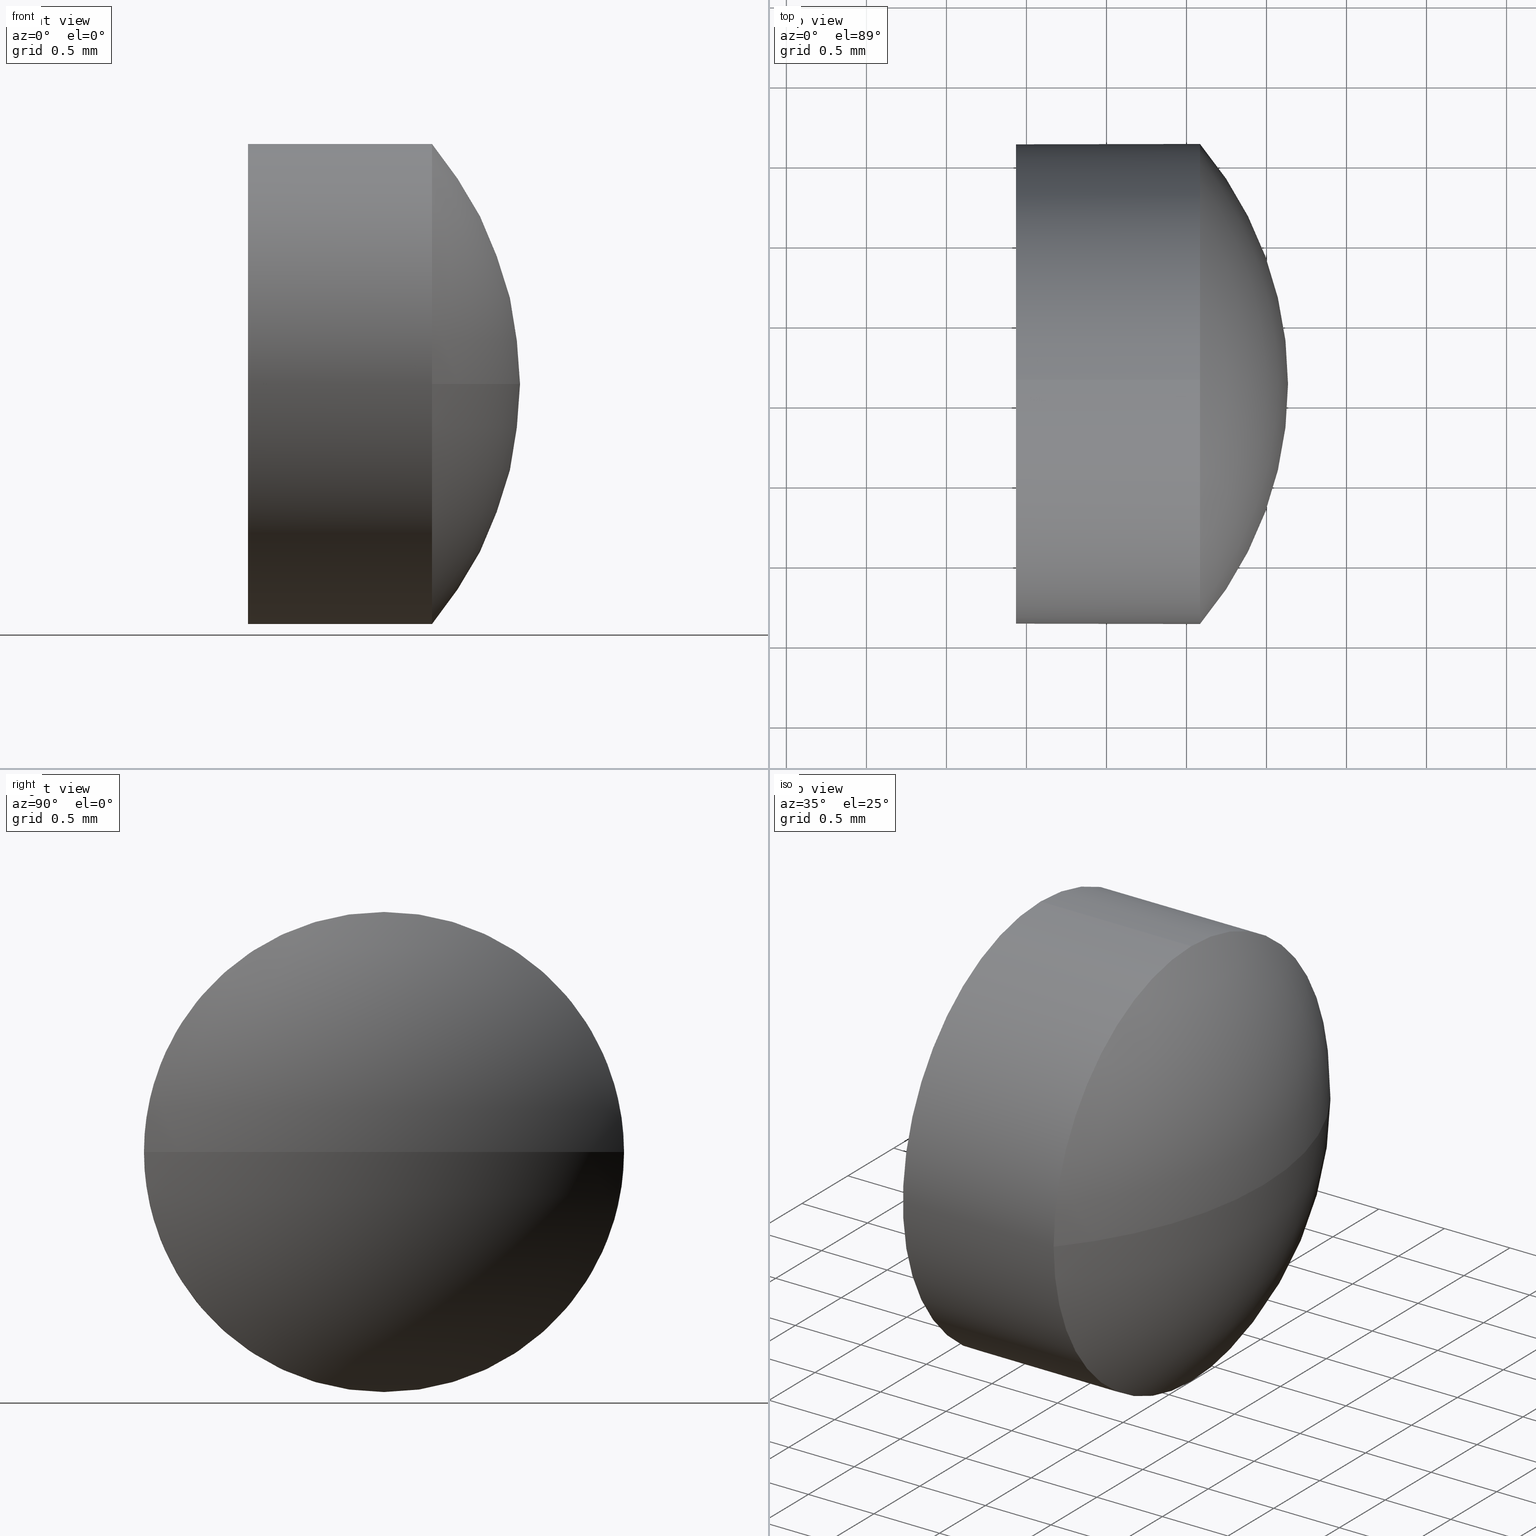
[diagram: canonical four-view strip — front | top / right | iso, engineering-drawing reading convention]
A machine part, canonical four-view strip (front | top / right | iso — engineering-drawing reading convention). The complete STEP part file that produces these views, byte-faithful:
ISO-10303-21;
HEADER;
FILE_DESCRIPTION (( 'STEP AP214' ),
    '1' );
FILE_NAME ('100086.STEP',
    '2019-05-13T02:21:16',
    ( '' ),
    ( '' ),
    'SwSTEP 2.0',
    'SolidWorks 2016',
    '' );
FILE_SCHEMA (( 'AUTOMOTIVE_DESIGN' ));
ENDSEC;

DATA;
#1 = APPLICATION_PROTOCOL_DEFINITION ( 'draft international standard', 'automotive_design', 1998, #29 ) ;
#2 = ORIENTED_EDGE ( 'NONE', *, *, #13, .T. ) ;
#3 = CARTESIAN_POINT ( 'NONE',  ( 533.6345540379046500, 125.1230185233483400, 0.0000000000000000000 ) ) ;
#4 = DIRECTION ( 'NONE',  ( 0.0000000000000000000, 1.000000000000000000, 0.0000000000000000000 ) ) ;
#5 = VERTEX_POINT ( 'NONE', #108 ) ;
#6 = MANIFOLD_SOLID_BREP ( '��ת1', #8 ) ;
#7 = AXIS2_PLACEMENT_3D ( 'NONE', #41, #154, #15 ) ;
#8 = CLOSED_SHELL ( 'NONE', ( #122, #93, #119, #109, #23 ) ) ;
#9 = SPHERICAL_SURFACE ( 'NONE', #163, 2.320431340909120600 ) ;
#10 = DIRECTION ( 'NONE',  ( 1.000000000000000000, 0.0000000000000000000, 0.0000000000000000000 ) ) ;
#11 = DIRECTION ( 'NONE',  ( -1.000000000000000000, -0.0000000000000000000, -0.0000000000000000000 ) ) ;
#12 = DIRECTION ( 'NONE',  ( 0.0000000000000000000, 1.224646799147353200E-016, -1.000000000000000000 ) ) ;
#13 = EDGE_CURVE ( 'NONE', #164, #138, #165, .T. ) ;
#14 = SURFACE_SIDE_STYLE ('',( #126 ) ) ;
#15 = DIRECTION ( 'NONE',  ( 0.0000000000000000000, 0.0000000000000000000, 1.000000000000000000 ) ) ;
#16 = DIRECTION ( 'NONE',  ( -0.0000000000000000000, 0.0000000000000000000, -1.000000000000000000 ) ) ;
#17 = CARTESIAN_POINT ( 'NONE',  ( 531.3141226969954700, 125.1230185233483400, 0.0000000000000000000 ) ) ;
#18 = COLOUR_RGB ( '',1.000000000000000000, 1.000000000000000000, 1.000000000000000000 ) ;
#19 = COLOUR_RGB ( '',1.000000000000000000, 1.000000000000000000, 1.000000000000000000 ) ;
#20 = UNCERTAINTY_MEASURE_WITH_UNIT (LENGTH_MEASURE( 1.000000000000000100E-005 ), #50, 'distance_accuracy_value', 'NONE');
#21 = ORIENTED_EDGE ( 'NONE', *, *, #167, .F. ) ;
#22 = AXIS2_PLACEMENT_3D ( 'NONE', #60, #183, #102 ) ;
#23 = ADVANCED_FACE ( 'NONE', ( #160 ), #137, .F. ) ;
#24 = CARTESIAN_POINT ( 'NONE',  ( 533.0845595379046200, 125.1230185233483600, 1.499984999999981500 ) ) ;
#25 = EDGE_LOOP ( 'NONE', ( #125, #145, #97, #162, #27 ) ) ;
#26 = FILL_AREA_STYLE_COLOUR ( '', #18 ) ;
#27 = ORIENTED_EDGE ( 'NONE', *, *, #37, .F. ) ;
#28 = DIRECTION ( 'NONE',  ( -1.000000000000000000, -0.0000000000000000000, -0.0000000000000000000 ) ) ;
#29 = APPLICATION_CONTEXT ( 'automotive_design' ) ;
#30 = DIRECTION ( 'NONE',  ( 0.0000000000000000000, 0.0000000000000000000, 1.000000000000000000 ) ) ;
#31 = CARTESIAN_POINT ( 'NONE',  ( 0.0000000000000000000, 0.0000000000000000000, 0.0000000000000000000 ) ) ;
#32 = DIRECTION ( 'NONE',  ( 0.0000000000000000000, 1.000000000000000000, 1.224646799147354700E-016 ) ) ;
#33 = FACE_OUTER_BOUND ( 'NONE', #65, .T. ) ;
#34 = ORIENTED_EDGE ( 'NONE', *, *, #58, .F. ) ;
#35 = VECTOR ( 'NONE', #175, 1000.000000000000000 ) ;
#36 = AXIS2_PLACEMENT_3D ( 'NONE', #61, #139, #104 ) ;
#37 = EDGE_CURVE ( 'NONE', #173, #5, #185, .T. ) ;
#38 = CARTESIAN_POINT ( 'NONE',  ( 533.0845595379046200, 125.1230185233483600, 0.0000000000000000000 ) ) ;
#39 = SURFACE_SIDE_STYLE ('',( #42 ) ) ;
#40 = CARTESIAN_POINT ( 'NONE',  ( 533.0845595379046200, 123.6230335233483800, -1.836951829018992800E-016 ) ) ;
#41 = CARTESIAN_POINT ( 'NONE',  ( 533.0845595379046200, 125.1230185233483600, 0.0000000000000000000 ) ) ;
#42 = SURFACE_STYLE_FILL_AREA ( #136 ) ;
#43 = DIRECTION ( 'NONE',  ( 0.0000000000000000000, 0.0000000000000000000, 1.000000000000000000 ) ) ;
#44 = CARTESIAN_POINT ( 'NONE',  ( 531.3141226969954700, 125.1230185233483400, 0.0000000000000000000 ) ) ;
#45 = ORIENTED_EDGE ( 'NONE', *, *, #128, .T. ) ;
#46 = EDGE_CURVE ( 'NONE', #5, #173, #150, .T. ) ;
#47 = CIRCLE ( 'NONE', #7, 1.499984999999981500 ) ;
#48 = AXIS2_PLACEMENT_3D ( 'NONE', #44, #63, #4 ) ;
#49 =( NAMED_UNIT ( * ) PLANE_ANGLE_UNIT ( ) SI_UNIT ( $, .RADIAN. ) );
#50 =( LENGTH_UNIT ( ) NAMED_UNIT ( * ) SI_UNIT ( .MILLI., .METRE. ) );
#51 = CARTESIAN_POINT ( 'NONE',  ( 531.3141226969954700, 125.1230185233483400, 0.0000000000000000000 ) ) ;
#52 = DIRECTION ( 'NONE',  ( 0.0000000000000000000, 1.000000000000000000, 0.0000000000000000000 ) ) ;
#53 = EDGE_LOOP ( 'NONE', ( #168, #177, #114, #178 ) ) ;
#54 = PRESENTATION_LAYER_ASSIGNMENT (  '', '', ( #56 ) ) ;
#55 = VERTEX_POINT ( 'NONE', #40 ) ;
#56 = STYLED_ITEM ( 'NONE', ( #149 ), #6 ) ;
#57 = CYLINDRICAL_SURFACE ( 'NONE', #106, 1.499984999999981500 ) ;
#58 = EDGE_CURVE ( 'NONE', #86, #5, #147, .T. ) ;
#59 = PRODUCT_DEFINITION_CONTEXT ( 'detailed design', #29, 'design' ) ;
#60 = CARTESIAN_POINT ( 'NONE',  ( 533.0845595379046200, 125.1230185233483600, 0.0000000000000000000 ) ) ;
#61 = CARTESIAN_POINT ( 'NONE',  ( 531.9345710379045600, 125.1230185233483600, 0.0000000000000000000 ) ) ;
#62 = CIRCLE ( 'NONE', #151, 1.499984999999981500 ) ;
#63 = DIRECTION ( 'NONE',  ( -0.0000000000000000000, 0.0000000000000000000, -1.000000000000000000 ) ) ;
#64 = CARTESIAN_POINT ( 'NONE',  ( 531.9345710379045600, 125.1230185233483600, -1.499984999999981500 ) ) ;
#65 = EDGE_LOOP ( 'NONE', ( #2, #92, #98, #34, #89 ) ) ;
#66 =( LENGTH_UNIT ( ) NAMED_UNIT ( * ) SI_UNIT ( .MILLI., .METRE. ) );
#67 = CYLINDRICAL_SURFACE ( 'NONE', #87, 1.499984999999981500 ) ;
#68 =( NAMED_UNIT ( * ) PLANE_ANGLE_UNIT ( ) SI_UNIT ( $, .RADIAN. ) );
#69 = AXIS2_PLACEMENT_3D ( 'NONE', #174, #28, #30 ) ;
#70 = MECHANICAL_DESIGN_GEOMETRIC_PRESENTATION_REPRESENTATION (  '', ( #148 ), #103 ) ;
#71 = FACE_OUTER_BOUND ( 'NONE', #25, .T. ) ;
#72 =( GEOMETRIC_REPRESENTATION_CONTEXT ( 3 ) GLOBAL_UNCERTAINTY_ASSIGNED_CONTEXT ( ( #155 ) ) GLOBAL_UNIT_ASSIGNED_CONTEXT ( ( #94, #68, #110 ) ) REPRESENTATION_CONTEXT ( 'NONE', 'WORKASPACE' ) );
#73 = AXIS2_PLACEMENT_3D ( 'NONE', #51, #184, #111 ) ;
#74 = CARTESIAN_POINT ( 'NONE',  ( 531.9345710379045600, 125.1230185233483600, 0.0000000000000000000 ) ) ;
#75 = DIRECTION ( 'NONE',  ( 0.0000000000000000000, 0.0000000000000000000, 1.000000000000000000 ) ) ;
#76 = PRODUCT_DEFINITION ( 'δ֪', '', #146, #59 ) ;
#77 = CARTESIAN_POINT ( 'NONE',  ( 531.7030729802447700, 125.1230185233483600, 1.499984999999981500 ) ) ;
#78 = FILL_AREA_STYLE_COLOUR ( '', #19 ) ;
#79 = PRODUCT_RELATED_PRODUCT_CATEGORY ( 'part', '', ( #176 ) ) ;
#80 =( NAMED_UNIT ( * ) PLANE_ANGLE_UNIT ( ) SI_UNIT ( $, .RADIAN. ) );
#81 = VECTOR ( 'NONE', #11, 1000.000000000000000 ) ;
#82 = EDGE_CURVE ( 'NONE', #86, #164, #62, .T. ) ;
#83 = CARTESIAN_POINT ( 'NONE',  ( 531.3141226969954700, 125.1230185233483400, 0.0000000000000000000 ) ) ;
#84 = EDGE_LOOP ( 'NONE', ( #21, #45, #118, #134 ) ) ;
#85 = ADVANCED_BREP_SHAPE_REPRESENTATION ( '100086', ( #6, #135 ), #72 ) ;
#86 = VERTEX_POINT ( 'NONE', #24 ) ;
#87 = AXIS2_PLACEMENT_3D ( 'NONE', #158, #127, #95 ) ;
#88 = CIRCLE ( 'NONE', #117, 2.320431340909118000 ) ;
#89 = ORIENTED_EDGE ( 'NONE', *, *, #82, .T. ) ;
#90 = EDGE_CURVE ( 'NONE', #138, #55, #144, .T. ) ;
#91 = DIRECTION ( 'NONE',  ( 0.0000000000000000000, 0.0000000000000000000, 1.000000000000000000 ) ) ;
#92 = ORIENTED_EDGE ( 'NONE', *, *, #99, .T. ) ;
#93 = ADVANCED_FACE ( 'NONE', ( #100 ), #9, .T. ) ;
#94 =( LENGTH_UNIT ( ) NAMED_UNIT ( * ) SI_UNIT ( .MILLI., .METRE. ) );
#95 = DIRECTION ( 'NONE',  ( 0.0000000000000000000, 0.0000000000000000000, 1.000000000000000000 ) ) ;
#96 =( NAMED_UNIT ( * ) SI_UNIT ( $, .STERADIAN. ) SOLID_ANGLE_UNIT ( ) );
#97 = ORIENTED_EDGE ( 'NONE', *, *, #116, .T. ) ;
#98 = ORIENTED_EDGE ( 'NONE', *, *, #46, .F. ) ;
#99 = EDGE_CURVE ( 'NONE', #138, #173, #132, .T. ) ;
#100 = FACE_OUTER_BOUND ( 'NONE', #53, .T. ) ;
#101 = ORIENTED_EDGE ( 'NONE', *, *, #46, .T. ) ;
#102 = DIRECTION ( 'NONE',  ( 0.0000000000000000000, 0.0000000000000000000, 1.000000000000000000 ) ) ;
#103 =( GEOMETRIC_REPRESENTATION_CONTEXT ( 3 ) GLOBAL_UNCERTAINTY_ASSIGNED_CONTEXT ( ( #129 ) ) GLOBAL_UNIT_ASSIGNED_CONTEXT ( ( #66, #80, #96 ) ) REPRESENTATION_CONTEXT ( 'NONE', 'WORKASPACE' ) );
#104 = DIRECTION ( 'NONE',  ( 0.0000000000000000000, 0.0000000000000000000, 1.000000000000000000 ) ) ;
#105 = CIRCLE ( 'NONE', #73, 2.320431340909090400 ) ;
#106 = AXIS2_PLACEMENT_3D ( 'NONE', #143, #156, #159 ) ;
#107 = SURFACE_STYLE_USAGE ( .BOTH. , #39 ) ;
#108 = CARTESIAN_POINT ( 'NONE',  ( 531.9345710379045600, 125.1230185233483600, 1.499984999999981500 ) ) ;
#109 = ADVANCED_FACE ( 'NONE', ( #71 ), #67, .T. ) ;
#110 =( NAMED_UNIT ( * ) SI_UNIT ( $, .STERADIAN. ) SOLID_ANGLE_UNIT ( ) );
#111 = DIRECTION ( 'NONE',  ( 1.000000000000000000, 0.0000000000000000000, 0.0000000000000000000 ) ) ;
#112 = MECHANICAL_DESIGN_GEOMETRIC_PRESENTATION_REPRESENTATION (  '', ( #56 ), #120 ) ;
#113 = CARTESIAN_POINT ( 'NONE',  ( 533.0845595379046200, 126.6230035233483200, 0.0000000000000000000 ) ) ;
#114 = ORIENTED_EDGE ( 'NONE', *, *, #90, .F. ) ;
#115 = SPHERICAL_SURFACE ( 'NONE', #48, 2.320431340909120600 ) ;
#116 = EDGE_CURVE ( 'NONE', #55, #86, #47, .T. ) ;
#117 = AXIS2_PLACEMENT_3D ( 'NONE', #17, #12, #32 ) ;
#118 = ORIENTED_EDGE ( 'NONE', *, *, #82, .F. ) ;
#119 = ADVANCED_FACE ( 'NONE', ( #157 ), #115, .T. ) ;
#120 =( GEOMETRIC_REPRESENTATION_CONTEXT ( 3 ) GLOBAL_UNCERTAINTY_ASSIGNED_CONTEXT ( ( #20 ) ) GLOBAL_UNIT_ASSIGNED_CONTEXT ( ( #50, #49, #152 ) ) REPRESENTATION_CONTEXT ( 'NONE', 'WORKASPACE' ) );
#121 = DIRECTION ( 'NONE',  ( -1.000000000000000000, -0.0000000000000000000, -0.0000000000000000000 ) ) ;
#122 = ADVANCED_FACE ( 'NONE', ( #33 ), #57, .T. ) ;
#123 = CARTESIAN_POINT ( 'NONE',  ( 531.7030729802447700, 125.1230185233483600, -1.499984999999981500 ) ) ;
#124 = DIRECTION ( 'NONE',  ( 1.000000000000000000, 0.0000000000000000000, 0.0000000000000000000 ) ) ;
#125 = ORIENTED_EDGE ( 'NONE', *, *, #99, .F. ) ;
#126 = SURFACE_STYLE_FILL_AREA ( #140 ) ;
#127 = DIRECTION ( 'NONE',  ( -1.000000000000000000, -0.0000000000000000000, -0.0000000000000000000 ) ) ;
#128 = EDGE_CURVE ( 'NONE', #180, #164, #105, .T. ) ;
#129 = UNCERTAINTY_MEASURE_WITH_UNIT (LENGTH_MEASURE( 1.000000000000000100E-005 ), #66, 'distance_accuracy_value', 'NONE');
#130 = ORIENTED_EDGE ( 'NONE', *, *, #37, .T. ) ;
#131 = AXIS2_PLACEMENT_3D ( 'NONE', #182, #10, #169 ) ;
#132 = LINE ( 'NONE', #123, #35 ) ;
#133 = PRESENTATION_STYLE_ASSIGNMENT (( #172 ) ) ;
#134 = ORIENTED_EDGE ( 'NONE', *, *, #116, .F. ) ;
#135 = AXIS2_PLACEMENT_3D ( 'NONE', #31, #43, #124 ) ;
#136 = FILL_AREA_STYLE ('',( #26 ) ) ;
#137 = PLANE ( 'NONE',  #131 ) ;
#138 = VERTEX_POINT ( 'NONE', #186 ) ;
#139 = DIRECTION ( 'NONE',  ( -1.000000000000000000, -0.0000000000000000000, -0.0000000000000000000 ) ) ;
#140 = FILL_AREA_STYLE ('',( #78 ) ) ;
#141 = APPLICATION_CONTEXT ( 'automotive_design' ) ;
#142 = AXIS2_PLACEMENT_3D ( 'NONE', #74, #121, #75 ) ;
#143 = CARTESIAN_POINT ( 'NONE',  ( 531.7030729802447700, 125.1230185233483600, 0.0000000000000000000 ) ) ;
#144 = CIRCLE ( 'NONE', #69, 1.499984999999981500 ) ;
#145 = ORIENTED_EDGE ( 'NONE', *, *, #90, .T. ) ;
#146 = PRODUCT_DEFINITION_FORMATION_WITH_SPECIFIED_SOURCE ( '�κ�', '', #176, .NOT_KNOWN. ) ;
#147 = LINE ( 'NONE', #77, #81 ) ;
#148 = STYLED_ITEM ( 'NONE', ( #133 ), #85 ) ;
#149 = PRESENTATION_STYLE_ASSIGNMENT (( #107 ) ) ;
#150 = CIRCLE ( 'NONE', #36, 1.499984999999981500 ) ;
#151 = AXIS2_PLACEMENT_3D ( 'NONE', #38, #181, #91 ) ;
#152 =( NAMED_UNIT ( * ) SI_UNIT ( $, .STERADIAN. ) SOLID_ANGLE_UNIT ( ) );
#153 = APPLICATION_PROTOCOL_DEFINITION ( 'draft international standard', 'automotive_design', 1998, #141 ) ;
#154 = DIRECTION ( 'NONE',  ( -1.000000000000000000, -0.0000000000000000000, -0.0000000000000000000 ) ) ;
#155 = UNCERTAINTY_MEASURE_WITH_UNIT (LENGTH_MEASURE( 1.000000000000000100E-005 ), #94, 'distance_accuracy_value', 'NONE');
#156 = DIRECTION ( 'NONE',  ( -1.000000000000000000, -0.0000000000000000000, -0.0000000000000000000 ) ) ;
#157 = FACE_OUTER_BOUND ( 'NONE', #84, .T. ) ;
#158 = CARTESIAN_POINT ( 'NONE',  ( 531.7030729802447700, 125.1230185233483600, 0.0000000000000000000 ) ) ;
#159 = DIRECTION ( 'NONE',  ( 0.0000000000000000000, 0.0000000000000000000, 1.000000000000000000 ) ) ;
#160 = FACE_OUTER_BOUND ( 'NONE', #166, .T. ) ;
#161 = PRESENTATION_LAYER_ASSIGNMENT (  '', '', ( #148 ) ) ;
#162 = ORIENTED_EDGE ( 'NONE', *, *, #58, .T. ) ;
#163 = AXIS2_PLACEMENT_3D ( 'NONE', #83, #16, #52 ) ;
#164 = VERTEX_POINT ( 'NONE', #113 ) ;
#165 = CIRCLE ( 'NONE', #22, 1.499984999999981500 ) ;
#166 = EDGE_LOOP ( 'NONE', ( #101, #130 ) ) ;
#167 = EDGE_CURVE ( 'NONE', #180, #55, #88, .T. ) ;
#168 = ORIENTED_EDGE ( 'NONE', *, *, #128, .F. ) ;
#169 = DIRECTION ( 'NONE',  ( 0.0000000000000000000, 0.0000000000000000000, -1.000000000000000000 ) ) ;
#170 = PRODUCT_DEFINITION_SHAPE ( 'NONE', 'NONE',  #76 ) ;
#171 = PRODUCT_CONTEXT ( 'NONE', #141, 'mechanical' ) ;
#172 = SURFACE_STYLE_USAGE ( .BOTH. , #14 ) ;
#173 = VERTEX_POINT ( 'NONE', #64 ) ;
#174 = CARTESIAN_POINT ( 'NONE',  ( 533.0845595379046200, 125.1230185233483600, 0.0000000000000000000 ) ) ;
#175 = DIRECTION ( 'NONE',  ( -1.000000000000000000, -0.0000000000000000000, -0.0000000000000000000 ) ) ;
#176 = PRODUCT ( '100086', '100086', '', ( #171 ) ) ;
#177 = ORIENTED_EDGE ( 'NONE', *, *, #167, .T. ) ;
#178 = ORIENTED_EDGE ( 'NONE', *, *, #13, .F. ) ;
#179 = SHAPE_DEFINITION_REPRESENTATION ( #170, #85 ) ;
#180 = VERTEX_POINT ( 'NONE', #3 ) ;
#181 = DIRECTION ( 'NONE',  ( -1.000000000000000000, -0.0000000000000000000, -0.0000000000000000000 ) ) ;
#182 = CARTESIAN_POINT ( 'NONE',  ( 531.9345710379045600, 125.1230185233483600, 0.0000000000000000000 ) ) ;
#183 = DIRECTION ( 'NONE',  ( -1.000000000000000000, -0.0000000000000000000, -0.0000000000000000000 ) ) ;
#184 = DIRECTION ( 'NONE',  ( -0.0000000000000000000, 0.0000000000000000000, 1.000000000000000000 ) ) ;
#185 = CIRCLE ( 'NONE', #142, 1.499984999999981500 ) ;
#186 = CARTESIAN_POINT ( 'NONE',  ( 533.0845595379046200, 125.1230185233483600, -1.499984999999981500 ) ) ;
ENDSEC;
END-ISO-10303-21;
